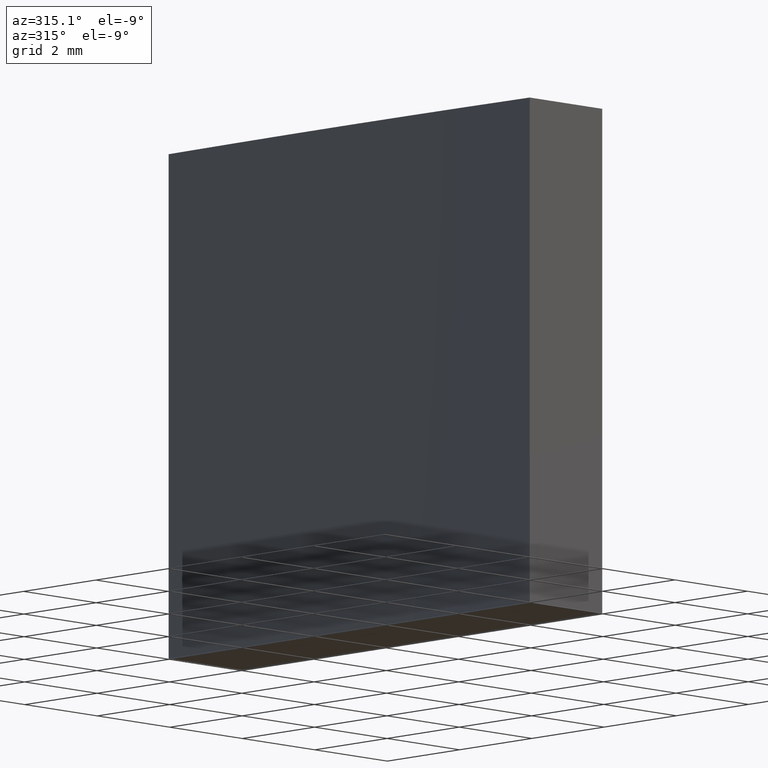
[diagram: clean part render]
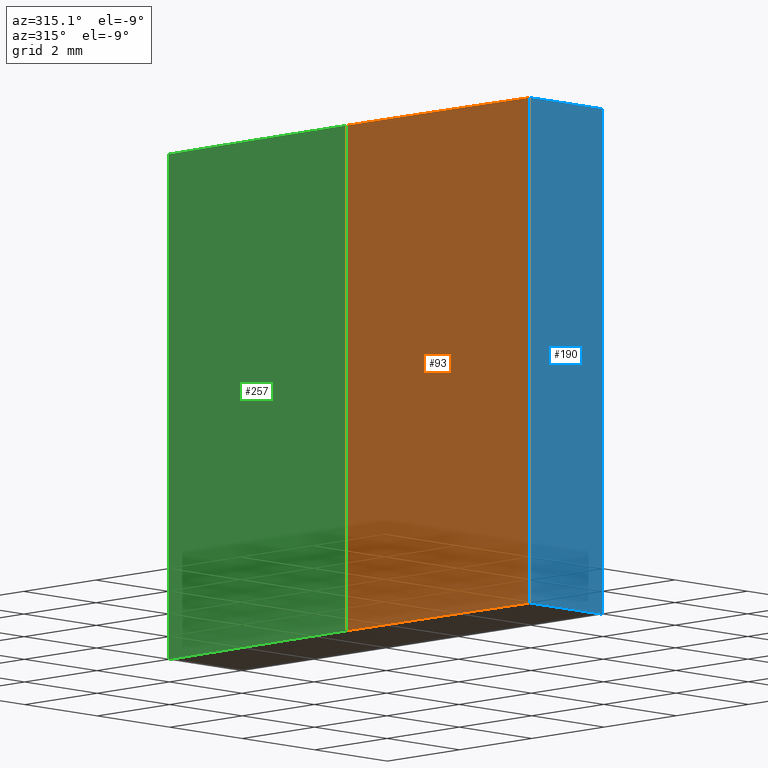
[diagram: same view with three faces highlighted in distinct colors, each labeled with its STEP entity id]
A machine part, auxiliary view with three faces highlighted in distinct colors.
Their STEP definitions:

[orange] entity #93 — the highlighted cylindrical surface (partial cylindrical patch) has radius 155.1 mm, axis along (-0, -0, -1).
#12 = LINE ( 'NONE', #114, #46 ) ;
#14 = CYLINDRICAL_SURFACE ( 'NONE', #121, 155.0999999999999943 ) ;
#16 = DIRECTION ( 'NONE',  ( -0.000000000000000000, -0.000000000000000000, -1.000000000000000000 ) ) ;
#34 = AXIS2_PLACEMENT_3D ( 'NONE', #100, #239, #221 ) ;
#35 = ORIENTED_EDGE ( 'NONE', *, *, #55, .F. ) ;
#38 = CARTESIAN_POINT ( 'NONE',  ( 0.000000000000000000, 0.000000000000000000, 10.00000000000000000 ) ) ;
#46 = VECTOR ( 'NONE', #16, 1000.000000000000000 ) ;
#53 = VECTOR ( 'NONE', #70, 1000.000000000000000 ) ;
#55 = EDGE_CURVE ( 'NONE', #133, #67, #99, .T. ) ;
#59 = CARTESIAN_POINT ( 'NONE',  ( -155.0193858844757244, -5.000000000000000000, 0.000000000000000000 ) ) ;
#67 = VERTEX_POINT ( 'NONE', #98 ) ;
#70 = DIRECTION ( 'NONE',  ( -0.000000000000000000, -0.000000000000000000, -1.000000000000000000 ) ) ;
#71 = DIRECTION ( 'NONE',  ( -0.000000000000000000, -0.000000000000000000, -1.000000000000000000 ) ) ;
#74 = CARTESIAN_POINT ( 'NONE',  ( -155.0193858844757244, -5.000000000000000000, 10.00000000000000000 ) ) ;
#86 = EDGE_CURVE ( 'NONE', #67, #107, #202, .T. ) ;
#92 = EDGE_LOOP ( 'NONE', ( #35, #175, #256, #169 ) ) ;
#93 = ADVANCED_FACE ( 'NONE', ( #113 ), #14, .T. ) ;
#98 = CARTESIAN_POINT ( 'NONE',  ( -155.0193858844757244, -5.000000000000000000, 10.00000000000000000 ) ) ;
#99 = CIRCLE ( 'NONE', #206, 155.0999999999999943 ) ;
#100 = CARTESIAN_POINT ( 'NONE',  ( 0.000000000000000000, 0.000000000000000000, 0.000000000000000000 ) ) ;
#107 = VERTEX_POINT ( 'NONE', #59 ) ;
#113 = FACE_OUTER_BOUND ( 'NONE', #92, .T. ) ;
#114 = CARTESIAN_POINT ( 'NONE',  ( -155.0999999999999943, 0.000000000000000000, 10.00000000000000000 ) ) ;
#116 = CARTESIAN_POINT ( 'NONE',  ( -155.0999999999999943, 0.000000000000000000, 10.00000000000000000 ) ) ;
#119 = DIRECTION ( 'NONE',  ( -1.000000000000000000, 0.000000000000000000, 0.000000000000000000 ) ) ;
#121 = AXIS2_PLACEMENT_3D ( 'NONE', #241, #71, #119 ) ;
#133 = VERTEX_POINT ( 'NONE', #116 ) ;
#139 = EDGE_CURVE ( 'NONE', #217, #107, #155, .T. ) ;
#141 = DIRECTION ( 'NONE',  ( 0.000000000000000000, 0.000000000000000000, 1.000000000000000000 ) ) ;
#155 = CIRCLE ( 'NONE', #34, 155.0999999999999943 ) ;
#169 = ORIENTED_EDGE ( 'NONE', *, *, #86, .F. ) ;
#175 = ORIENTED_EDGE ( 'NONE', *, *, #186, .T. ) ;
#181 = DIRECTION ( 'NONE',  ( 1.000000000000000000, 0.000000000000000000, 0.000000000000000000 ) ) ;
#186 = EDGE_CURVE ( 'NONE', #133, #217, #12, .T. ) ;
#202 = LINE ( 'NONE', #74, #53 ) ;
#206 = AXIS2_PLACEMENT_3D ( 'NONE', #38, #141, #181 ) ;
#217 = VERTEX_POINT ( 'NONE', #229 ) ;
#221 = DIRECTION ( 'NONE',  ( 1.000000000000000000, 0.000000000000000000, 0.000000000000000000 ) ) ;
#229 = CARTESIAN_POINT ( 'NONE',  ( -155.0999999999999943, 0.000000000000000000, 0.000000000000000000 ) ) ;
#239 = DIRECTION ( 'NONE',  ( 0.000000000000000000, 0.000000000000000000, 1.000000000000000000 ) ) ;
#241 = CARTESIAN_POINT ( 'NONE',  ( 0.000000000000000000, 0.000000000000000000, 10.00000000000000000 ) ) ;
#256 = ORIENTED_EDGE ( 'NONE', *, *, #139, .T. ) ;

[blue] entity #190 — the highlighted planar face has unit normal (0, 1, 0).
#20 = CARTESIAN_POINT ( 'NONE',  ( -155.0193858844757244, -5.000000000000000000, 10.00000000000000000 ) ) ;
#40 = DIRECTION ( 'NONE',  ( 1.000000000000000000, 0.000000000000000000, 0.000000000000000000 ) ) ;
#53 = VECTOR ( 'NONE', #70, 1000.000000000000000 ) ;
#59 = CARTESIAN_POINT ( 'NONE',  ( -155.0193858844757244, -5.000000000000000000, 0.000000000000000000 ) ) ;
#67 = VERTEX_POINT ( 'NONE', #98 ) ;
#68 = ORIENTED_EDGE ( 'NONE', *, *, #86, .T. ) ;
#70 = DIRECTION ( 'NONE',  ( -0.000000000000000000, -0.000000000000000000, -1.000000000000000000 ) ) ;
#73 = VECTOR ( 'NONE', #220, 1000.000000000000000 ) ;
#74 = CARTESIAN_POINT ( 'NONE',  ( -155.0193858844757244, -5.000000000000000000, 10.00000000000000000 ) ) ;
#86 = EDGE_CURVE ( 'NONE', #67, #107, #202, .T. ) ;
#96 = FACE_OUTER_BOUND ( 'NONE', #193, .T. ) ;
#98 = CARTESIAN_POINT ( 'NONE',  ( -155.0193858844757244, -5.000000000000000000, 10.00000000000000000 ) ) ;
#103 = DIRECTION ( 'NONE',  ( 0.000000000000000000, -0.000000000000000000, 1.000000000000000000 ) ) ;
#107 = VERTEX_POINT ( 'NONE', #59 ) ;
#117 = EDGE_CURVE ( 'NONE', #107, #153, #224, .T. ) ;
#124 = DIRECTION ( 'NONE',  ( 0.000000000000000000, 1.000000000000000000, 0.000000000000000000 ) ) ;
#128 = ORIENTED_EDGE ( 'NONE', *, *, #117, .T. ) ;
#131 = EDGE_CURVE ( 'NONE', #219, #153, #198, .T. ) ;
#153 = VERTEX_POINT ( 'NONE', #161 ) ;
#156 = CARTESIAN_POINT ( 'NONE',  ( -155.0193858844757244, -5.000000000000000000, 0.000000000000000000 ) ) ;
#161 = CARTESIAN_POINT ( 'NONE',  ( -153.0193858844757244, -5.000000000000000000, 0.000000000000000000 ) ) ;
#165 = DIRECTION ( 'NONE',  ( 1.000000000000000000, 0.000000000000000000, 0.000000000000000000 ) ) ;
#179 = PLANE ( 'NONE',  #210 ) ;
#190 = ADVANCED_FACE ( 'NONE', ( #96 ), #179, .F. ) ;
#191 = VECTOR ( 'NONE', #165, 1000.000000000000000 ) ;
#193 = EDGE_LOOP ( 'NONE', ( #128, #261, #263, #68 ) ) ;
#198 = LINE ( 'NONE', #205, #73 ) ;
#199 = EDGE_CURVE ( 'NONE', #67, #219, #228, .T. ) ;
#202 = LINE ( 'NONE', #74, #53 ) ;
#205 = CARTESIAN_POINT ( 'NONE',  ( -153.0193858844757244, -5.000000000000000000, 10.00000000000000000 ) ) ;
#207 = CARTESIAN_POINT ( 'NONE',  ( -153.0193858844757244, -5.000000000000000000, 10.00000000000000000 ) ) ;
#210 = AXIS2_PLACEMENT_3D ( 'NONE', #269, #124, #103 ) ;
#219 = VERTEX_POINT ( 'NONE', #207 ) ;
#220 = DIRECTION ( 'NONE',  ( -0.000000000000000000, -0.000000000000000000, -1.000000000000000000 ) ) ;
#224 = LINE ( 'NONE', #156, #248 ) ;
#228 = LINE ( 'NONE', #20, #191 ) ;
#248 = VECTOR ( 'NONE', #40, 1000.000000000000000 ) ;
#261 = ORIENTED_EDGE ( 'NONE', *, *, #131, .F. ) ;
#263 = ORIENTED_EDGE ( 'NONE', *, *, #199, .F. ) ;
#269 = CARTESIAN_POINT ( 'NONE',  ( -155.0193858844757244, -5.000000000000000000, 10.00000000000000000 ) ) ;

[green] entity #257 — the highlighted cylindrical surface (partial cylindrical patch) has radius 155.1 mm, axis along (-0, -0, -1).
#1 = CYLINDRICAL_SURFACE ( 'NONE', #130, 155.0999999999999943 ) ;
#2 = DIRECTION ( 'NONE',  ( -1.000000000000000000, 0.000000000000000000, 0.000000000000000000 ) ) ;
#5 = EDGE_CURVE ( 'NONE', #11, #133, #135, .T. ) ;
#11 = VERTEX_POINT ( 'NONE', #204 ) ;
#12 = LINE ( 'NONE', #114, #46 ) ;
#16 = DIRECTION ( 'NONE',  ( -0.000000000000000000, -0.000000000000000000, -1.000000000000000000 ) ) ;
#23 = EDGE_CURVE ( 'NONE', #11, #87, #180, .T. ) ;
#42 = AXIS2_PLACEMENT_3D ( 'NONE', #95, #245, #222 ) ;
#46 = VECTOR ( 'NONE', #16, 1000.000000000000000 ) ;
#62 = AXIS2_PLACEMENT_3D ( 'NONE', #110, #178, #76 ) ;
#76 = DIRECTION ( 'NONE',  ( 1.000000000000000000, 0.000000000000000000, 0.000000000000000000 ) ) ;
#84 = ORIENTED_EDGE ( 'NONE', *, *, #186, .F. ) ;
#85 = ORIENTED_EDGE ( 'NONE', *, *, #102, .T. ) ;
#87 = VERTEX_POINT ( 'NONE', #272 ) ;
#94 = CARTESIAN_POINT ( 'NONE',  ( -155.0193858844757244, 5.000000000000000000, 10.00000000000000000 ) ) ;
#95 = CARTESIAN_POINT ( 'NONE',  ( 0.000000000000000000, 0.000000000000000000, 0.000000000000000000 ) ) ;
#102 = EDGE_CURVE ( 'NONE', #87, #217, #115, .T. ) ;
#110 = CARTESIAN_POINT ( 'NONE',  ( 0.000000000000000000, 0.000000000000000000, 10.00000000000000000 ) ) ;
#114 = CARTESIAN_POINT ( 'NONE',  ( -155.0999999999999943, 0.000000000000000000, 10.00000000000000000 ) ) ;
#115 = CIRCLE ( 'NONE', #42, 155.0999999999999943 ) ;
#116 = CARTESIAN_POINT ( 'NONE',  ( -155.0999999999999943, 0.000000000000000000, 10.00000000000000000 ) ) ;
#130 = AXIS2_PLACEMENT_3D ( 'NONE', #211, #226, #2 ) ;
#132 = ORIENTED_EDGE ( 'NONE', *, *, #23, .T. ) ;
#133 = VERTEX_POINT ( 'NONE', #116 ) ;
#135 = CIRCLE ( 'NONE', #62, 155.0999999999999943 ) ;
#152 = EDGE_LOOP ( 'NONE', ( #84, #154, #132, #85 ) ) ;
#154 = ORIENTED_EDGE ( 'NONE', *, *, #5, .F. ) ;
#178 = DIRECTION ( 'NONE',  ( 0.000000000000000000, 0.000000000000000000, 1.000000000000000000 ) ) ;
#180 = LINE ( 'NONE', #94, #271 ) ;
#185 = FACE_OUTER_BOUND ( 'NONE', #152, .T. ) ;
#186 = EDGE_CURVE ( 'NONE', #133, #217, #12, .T. ) ;
#204 = CARTESIAN_POINT ( 'NONE',  ( -155.0193858844757244, 5.000000000000000000, 10.00000000000000000 ) ) ;
#211 = CARTESIAN_POINT ( 'NONE',  ( 0.000000000000000000, 0.000000000000000000, 10.00000000000000000 ) ) ;
#217 = VERTEX_POINT ( 'NONE', #229 ) ;
#222 = DIRECTION ( 'NONE',  ( 1.000000000000000000, 0.000000000000000000, 0.000000000000000000 ) ) ;
#226 = DIRECTION ( 'NONE',  ( -0.000000000000000000, -0.000000000000000000, -1.000000000000000000 ) ) ;
#229 = CARTESIAN_POINT ( 'NONE',  ( -155.0999999999999943, 0.000000000000000000, 0.000000000000000000 ) ) ;
#240 = DIRECTION ( 'NONE',  ( -0.000000000000000000, -0.000000000000000000, -1.000000000000000000 ) ) ;
#245 = DIRECTION ( 'NONE',  ( 0.000000000000000000, 0.000000000000000000, 1.000000000000000000 ) ) ;
#257 = ADVANCED_FACE ( 'NONE', ( #185 ), #1, .T. ) ;
#271 = VECTOR ( 'NONE', #240, 1000.000000000000000 ) ;
#272 = CARTESIAN_POINT ( 'NONE',  ( -155.0193858844757244, 5.000000000000000000, 0.000000000000000000 ) ) ;